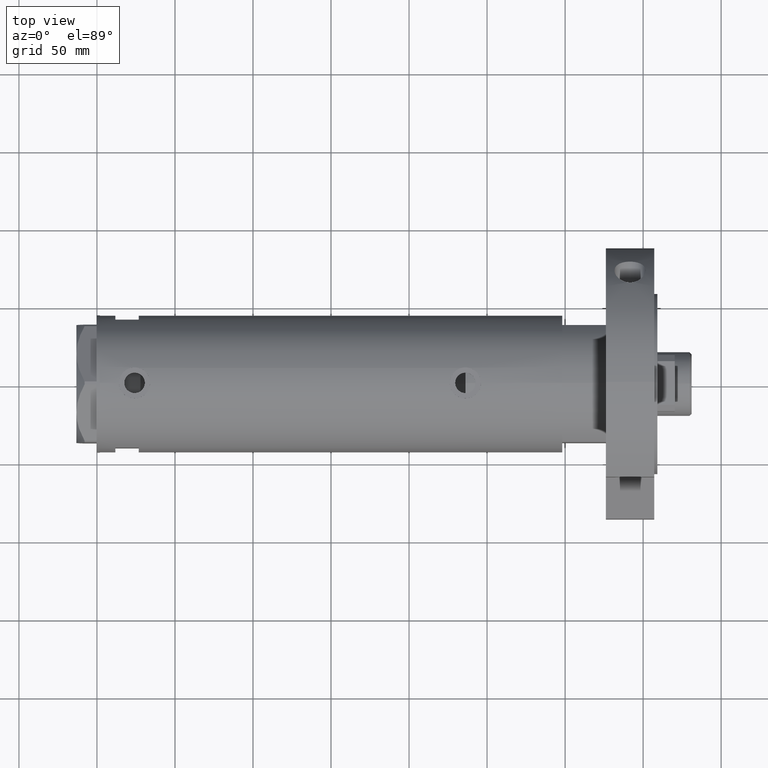
[diagram: clean part render]
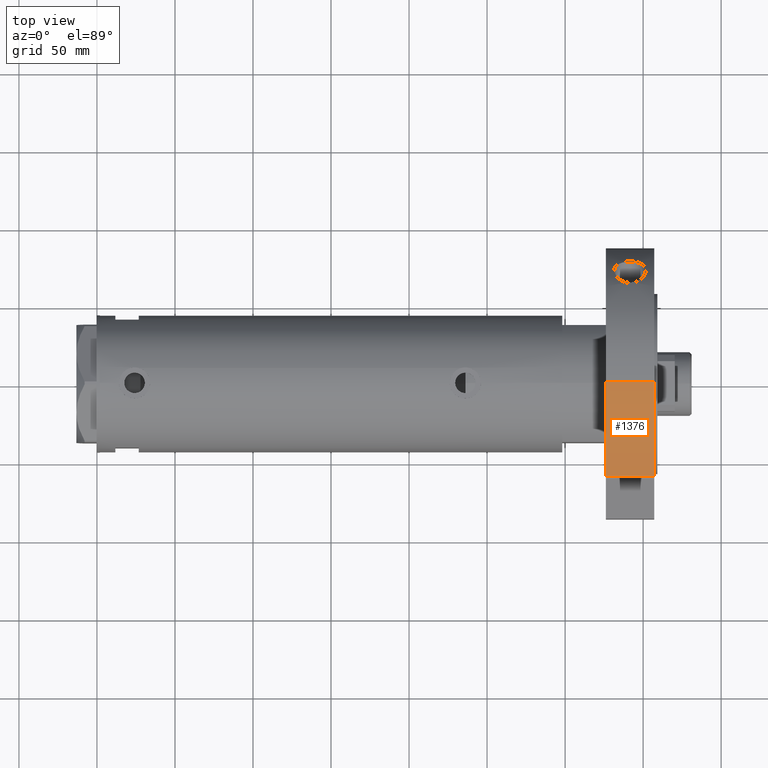
[diagram: same view with one face highlighted and labeled with its STEP entity id]
A machine part, top view. The second image highlights one B-rep face of the part: STEP entity #1376.
In plain terms, the highlighted cylindrical surface (partial cylindrical patch) has radius 87 mm, axis along (-1, -0, 0).
Its self-contained STEP definition (entity closure, byte-faithful):
#31 = DIRECTION ( 'NONE',  ( -1.000000000000000000, 0.000000000000000000, 0.000000000000000000 ) ) ;
#42 = ORIENTED_EDGE ( 'NONE', *, *, #1642, .T. ) ;
#429 = DIRECTION ( 'NONE',  ( 0.000000000000000000, 0.000000000000000000, 1.000000000000000000 ) ) ;
#486 = CARTESIAN_POINT ( 'NONE',  ( 62.54236590573034249, 60.47687547247904405, 0.000000000000000000 ) ) ;
#543 = DIRECTION ( 'NONE',  ( -0.000000000000000000, -0.000000000000000000, -1.000000000000000000 ) ) ;
#570 = EDGE_CURVE ( 'NONE', #4010, #890, #7013, .T. ) ;
#875 = EDGE_CURVE ( 'NONE', #3421, #890, #2655, .T. ) ;
#890 = VERTEX_POINT ( 'NONE', #1646 ) ;
#909 = DIRECTION ( 'NONE',  ( 0.000000000000000000, 0.000000000000000000, 1.000000000000000000 ) ) ;
#1376 = ADVANCED_FACE ( 'NONE', ( #1926 ), #4972, .T. ) ;
#1642 = EDGE_CURVE ( 'NONE', #7978, #4010, #4676, .T. ) ;
#1646 = CARTESIAN_POINT ( 'NONE',  ( 62.54236590573034249, 60.47687547247904405, 31.00000000000000000 ) ) ;
#1926 = FACE_OUTER_BOUND ( 'NONE', #4929, .T. ) ;
#2261 = AXIS2_PLACEMENT_3D ( 'NONE', #6168, #429, #4779 ) ;
#2283 = CARTESIAN_POINT ( 'NONE',  ( 0.000000000000000000, 0.000000000000000000, 0.000000000000000000 ) ) ;
#2288 = EDGE_CURVE ( 'NONE', #3421, #7978, #5413, .T. ) ;
#2325 = DIRECTION ( 'NONE',  ( 1.000000000000000000, 0.000000000000000000, 0.000000000000000000 ) ) ;
#2599 = DIRECTION ( 'NONE',  ( -0.000000000000000000, -0.000000000000000000, 1.000000000000000000 ) ) ;
#2655 = CIRCLE ( 'NONE', #2261, 87.00000000000000000 ) ;
#3008 = CARTESIAN_POINT ( 'NONE',  ( 87.00000000000000000, 1.065442715258197209E-14, 31.00000000000000000 ) ) ;
#3086 = CARTESIAN_POINT ( 'NONE',  ( 0.000000000000000000, 0.000000000000000000, 31.00000000000000000 ) ) ;
#3421 = VERTEX_POINT ( 'NONE', #3008 ) ;
#4010 = VERTEX_POINT ( 'NONE', #486 ) ;
#4621 = CARTESIAN_POINT ( 'NONE',  ( 87.00000000000000000, 1.065442715258197209E-14, 0.000000000000000000 ) ) ;
#4676 = CIRCLE ( 'NONE', #5756, 87.00000000000000000 ) ;
#4779 = DIRECTION ( 'NONE',  ( 1.000000000000000000, 0.000000000000000000, 0.000000000000000000 ) ) ;
#4929 = EDGE_LOOP ( 'NONE', ( #5022, #5901, #42, #6543 ) ) ;
#4972 = CYLINDRICAL_SURFACE ( 'NONE', #7092, 87.00000000000000000 ) ;
#5022 = ORIENTED_EDGE ( 'NONE', *, *, #875, .F. ) ;
#5365 = DIRECTION ( 'NONE',  ( -0.000000000000000000, -0.000000000000000000, -1.000000000000000000 ) ) ;
#5413 = LINE ( 'NONE', #6425, #5498 ) ;
#5498 = VECTOR ( 'NONE', #5365, 1000.000000000000000 ) ;
#5756 = AXIS2_PLACEMENT_3D ( 'NONE', #2283, #909, #2325 ) ;
#5901 = ORIENTED_EDGE ( 'NONE', *, *, #2288, .T. ) ;
#6168 = CARTESIAN_POINT ( 'NONE',  ( 0.000000000000000000, 0.000000000000000000, 31.00000000000000000 ) ) ;
#6425 = CARTESIAN_POINT ( 'NONE',  ( 87.00000000000000000, 1.065442715258197209E-14, 31.00000000000000000 ) ) ;
#6543 = ORIENTED_EDGE ( 'NONE', *, *, #570, .T. ) ;
#6973 = CARTESIAN_POINT ( 'NONE',  ( 62.54236590573034249, 60.47687547247904405, 0.000000000000000000 ) ) ;
#7013 = LINE ( 'NONE', #6973, #7082 ) ;
#7082 = VECTOR ( 'NONE', #2599, 1000.000000000000000 ) ;
#7092 = AXIS2_PLACEMENT_3D ( 'NONE', #3086, #543, #31 ) ;
#7978 = VERTEX_POINT ( 'NONE', #4621 ) ;